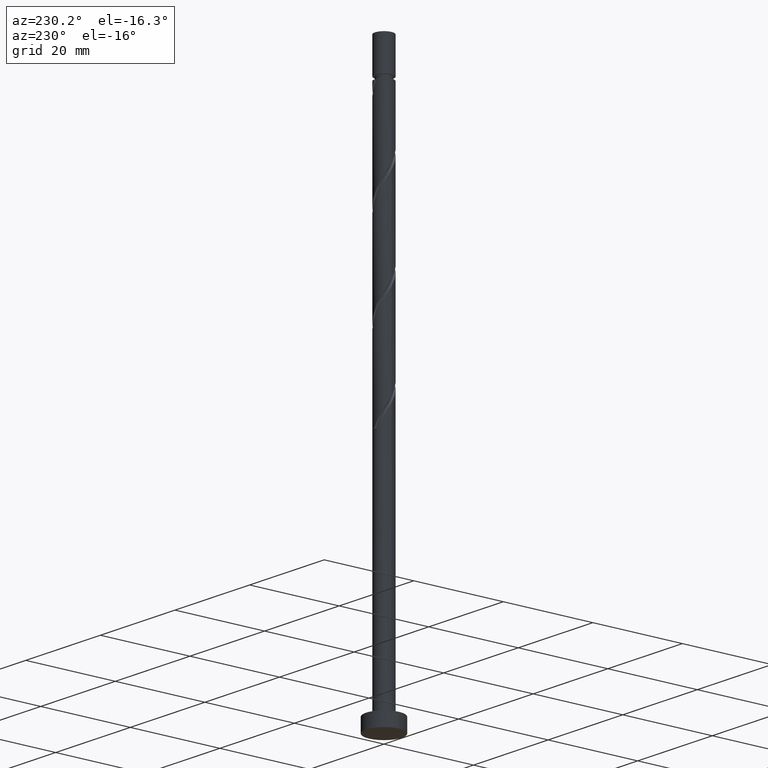
[diagram: clean part render]
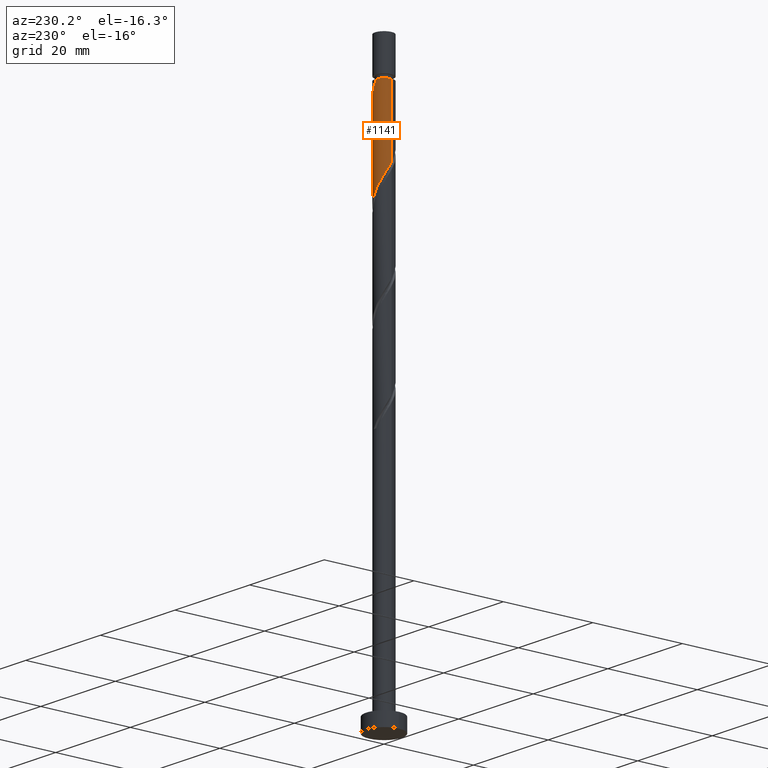
[diagram: same view with one face highlighted and labeled with its STEP entity id]
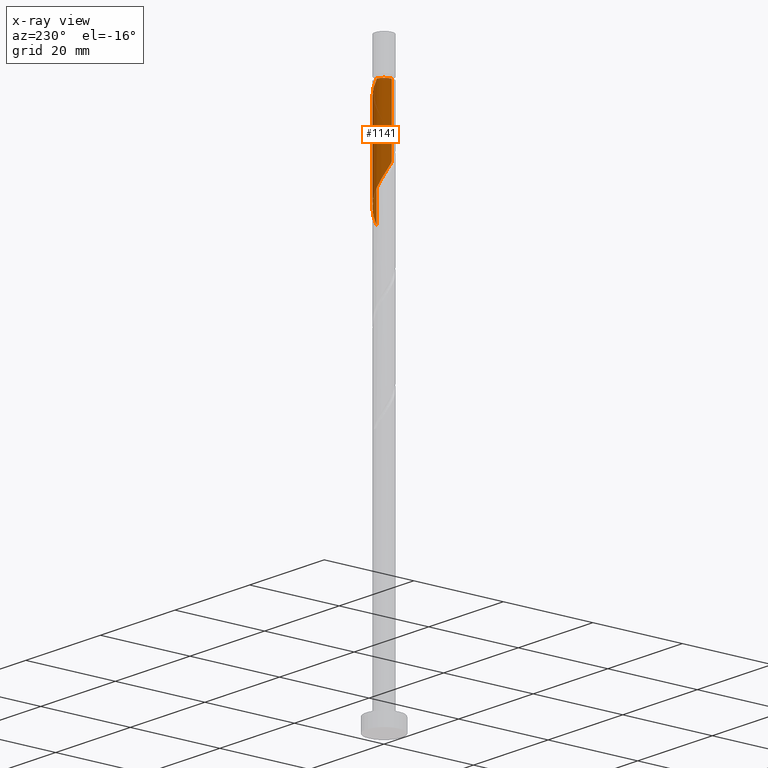
[diagram: x-ray of the same camera — body ghosted, the highlighted face saturated]
A machine part, auxiliary view. The second image highlights one B-rep face of the part: STEP entity #1141.
The next image is the same camera in x-ray: the body ghosted, the highlighted face saturated — about 0% of this face is hidden behind the body in this view.
In plain terms, the highlighted cylindrical surface (edge-blend (fillet) strip) has radius 2 mm, axis along (-0, -0, -1).
Its self-contained STEP definition (entity closure, byte-faithful):
#2 = CARTESIAN_POINT ( 'NONE',  ( -1.118272131136731851, 1.688138017008851577, 98.40886775623292237 ) ) ;
#23 = VECTOR ( 'NONE', #1554, 1000.000000000000000 ) ;
#25 = CARTESIAN_POINT ( 'NONE',  ( 0.08756147180655703133, 2.023036211342430946, 96.32553442289960799 ) ) ;
#33 = AXIS2_PLACEMENT_3D ( 'NONE', #424, #919, #1044 ) ;
#34 = CARTESIAN_POINT ( 'NONE',  ( 1.474043792816779774, 1.351737732275874349, 93.72136775623295080 ) ) ;
#102 = CARTESIAN_POINT ( 'NONE',  ( 1.351737732275877013, 1.474043792816781107, 113.5130344228996222 ) ) ;
#117 = ORIENTED_EDGE ( 'NONE', *, *, #1424, .F. ) ;
#132 = EDGE_CURVE ( 'NONE', #169, #741, #822, .T. ) ;
#157 = CARTESIAN_POINT ( 'NONE',  ( 1.987057982840708892, 0.2271575946980703420, 91.63803442289960799 ) ) ;
#169 = VERTEX_POINT ( 'NONE', #1318 ) ;
#241 = AXIS2_PLACEMENT_3D ( 'NONE', #395, #1121, #896 ) ;
#246 = ORIENTED_EDGE ( 'NONE', *, *, #399, .T. ) ;
#247 = CARTESIAN_POINT ( 'NONE',  ( 0.5418766612026997276, 1.951079754338990169, 115.0755344228996222 ) ) ;
#251 = CARTESIAN_POINT ( 'NONE',  ( -0.8300743961697154560, 1.819608885673918985, 97.88803442289962220 ) ) ;
#267 = CARTESIAN_POINT ( 'NONE',  ( 1.951079754338987282, 0.5418766612026980622, 92.15886775623292237 ) ) ;
#276 = CARTESIAN_POINT ( 'NONE',  ( -1.999999999999999112, 0.2010075630518459722, 101.3435322889620238 ) ) ;
#280 = LINE ( 'NONE', #754, #396 ) ;
#297 = CARTESIAN_POINT ( 'NONE',  ( -2.000000000000000000, -1.409351661621345435E-15, 101.6778368643698798 ) ) ;
#337 = CARTESIAN_POINT ( 'NONE',  ( 0.2271575946980718963, 1.987057982840712000, 115.5963677562329508 ) ) ;
#344 = CARTESIAN_POINT ( 'NONE',  ( 1.896963788657572092, 0.7084284778787396375, 111.9505344228996222 ) ) ;
#386 = CYLINDRICAL_SURFACE ( 'NONE', #241, 2.000000000000000000 ) ;
#387 =( BOUNDED_CURVE ( )  B_SPLINE_CURVE ( 2, ( #1425, #469, #1311, #344, #1446, #1333, #102, #836, #1317, #247, #337, #964, #603 ),
 .UNSPECIFIED., .F., .T. ) 
 B_SPLINE_CURVE_WITH_KNOTS ( ( 3, 2, 2, 2, 2, 2, 3 ),
 ( 0.6795322023138550271, 0.6875000000000000000, 0.6999999999999999556, 0.7124999999999999112, 0.7249999999999998668, 0.7374999999999999334, 0.7499999999999998890 ),
 .UNSPECIFIED. ) 
 CURVE ( )  GEOMETRIC_REPRESENTATION_ITEM ( )  RATIONAL_B_SPLINE_CURVE ( ( 0.9039174447099409537, 0.9019565955404700297, 0.9090909090909186085, 0.8978984914501346726, 0.9090909090909186085, 0.8978984914501346726, 0.9090909090909186085, 0.8978984914501346726, 0.9090909090909186085, 0.8978984914501346726, 0.9090909090909186085, 0.8978984914501347836, 0.9090909090909184975 ) ) 
 REPRESENTATION_ITEM ( '' )  );
#395 = CARTESIAN_POINT ( 'NONE',  ( 0.000000000000000000, 0.000000000000000000, 125.0000000000000000 ) ) ;
#396 = VECTOR ( 'NONE', #1128, 1000.000000000000000 ) ;
#399 = EDGE_CURVE ( 'NONE', #627, #1105, #280, .T. ) ;
#424 = CARTESIAN_POINT ( 'NONE',  ( 0.000000000000000000, 0.000000000000000000, 116.6380344228996222 ) ) ;
#469 = CARTESIAN_POINT ( 'NONE',  ( 2.000000000000003997, 0.2010075630518376733, 111.0992032235038920 ) ) ;
#497 = CARTESIAN_POINT ( 'NONE',  ( 1.688138017008851577, 1.118272131136731407, 93.20053442289963641 ) ) ;
#504 = CARTESIAN_POINT ( 'NONE',  ( -0.5418766612026981733, 1.951079754338987282, 97.36720108956626518 ) ) ;
#507 = CARTESIAN_POINT ( 'NONE',  ( 2.000000000000000000, 2.908661939941925501E-15, 91.26117019770322258 ) ) ;
#511 = CARTESIAN_POINT ( 'NONE',  ( -1.351737732275874793, 1.474043792816779552, 98.92970108956629360 ) ) ;
#520 = CARTESIAN_POINT ( 'NONE',  ( -2.000000000000000000, -1.409351661621345435E-15, 101.6778368643698798 ) ) ;
#570 = CARTESIAN_POINT ( 'NONE',  ( -0.3979949748426602207, 1.960000000000000853, 116.6380344228996648 ) ) ;
#603 = CARTESIAN_POINT ( 'NONE',  ( -0.3979949748426602762, 1.960000000000000853, 116.6380344228996790 ) ) ;
#627 = VERTEX_POINT ( 'NONE', #655 ) ;
#645 = CARTESIAN_POINT ( 'NONE',  ( -1.741083561036292915, 0.9841890232517231940, 99.97136775623295080 ) ) ;
#655 = CARTESIAN_POINT ( 'NONE',  ( 2.000000000000002665, 5.847310085450225337E-16, 110.7648986480960360 ) ) ;
#657 = VERTEX_POINT ( 'NONE', #570 ) ;
#737 = CARTESIAN_POINT ( 'NONE',  ( -0.2271575946980707306, 1.987057982840708892, 96.84636775623295080 ) ) ;
#741 = VERTEX_POINT ( 'NONE', #297 ) ;
#745 = CARTESIAN_POINT ( 'NONE',  ( 0.9841890232517236381, 1.741083561036292915, 94.76303442289962220 ) ) ;
#754 = CARTESIAN_POINT ( 'NONE',  ( 2.000000000000000000, 2.449293598294705921E-16, 125.0000000000000000 ) ) ;
#807 = ORIENTED_EDGE ( 'NONE', *, *, #1268, .T. ) ;
#822 = LINE ( 'NONE', #965, #23 ) ;
#836 = CARTESIAN_POINT ( 'NONE',  ( 1.118272131136734515, 1.688138017008854241, 114.0338677562329650 ) ) ;
#869 = CARTESIAN_POINT ( 'NONE',  ( -1.585203333415016846, 1.259949568624706417, 99.45053442289957957 ) ) ;
#896 = DIRECTION ( 'NONE',  ( -1.000000000000000000, 0.000000000000000000, 0.000000000000000000 ) ) ;
#919 = DIRECTION ( 'NONE',  ( -0.000000000000000000, -0.000000000000000000, -1.000000000000000000 ) ) ;
#964 = CARTESIAN_POINT ( 'NONE',  ( -0.08756147180655346474, 2.023036211342433166, 116.1172010895662936 ) ) ;
#965 = CARTESIAN_POINT ( 'NONE',  ( -2.000000000000000000, 0.000000000000000000, 125.0000000000000000 ) ) ;
#970 = EDGE_LOOP ( 'NONE', ( #117, #246, #1488, #1032, #807 ) ) ;
#977 = CARTESIAN_POINT ( 'NONE',  ( 2.000000000000000000, 2.908661939941925501E-15, 91.26117019770322258 ) ) ;
#1009 = EDGE_CURVE ( 'NONE', #741, #1105, #1147, .T. ) ;
#1032 = ORIENTED_EDGE ( 'NONE', *, *, #132, .F. ) ;
#1033 = CIRCLE ( 'NONE', #33, 1.999999999999998224 ) ;
#1044 = DIRECTION ( 'NONE',  ( -1.000000000000000000, 0.000000000000000000, 0.000000000000000000 ) ) ;
#1105 = VERTEX_POINT ( 'NONE', #507 ) ;
#1121 = DIRECTION ( 'NONE',  ( -0.000000000000000000, -0.000000000000000000, -1.000000000000000000 ) ) ;
#1126 = CARTESIAN_POINT ( 'NONE',  ( 0.3979949748426486189, 1.959999999999999964, 95.80470108956629360 ) ) ;
#1128 = DIRECTION ( 'NONE',  ( -0.000000000000000000, -0.000000000000000000, -1.000000000000000000 ) ) ;
#1141 = ADVANCED_FACE ( 'NONE', ( #1470 ), #386, .T. ) ;
#1147 =( BOUNDED_CURVE ( )  B_SPLINE_CURVE ( 2, ( #520, #276, #1364, #1338, #645, #869, #511, #2, #251, #504, #737, #25, #1126, #1347, #745, #1227, #34, #497, #1236, #267, #157, #1210, #977 ),
 .UNSPECIFIED., .F., .T. ) 
 B_SPLINE_CURVE_WITH_KNOTS ( ( 3, 2, 2, 2, 2, 2, 2, 2, 2, 2, 2, 3 ),
 ( 0.4295322023138553047, 0.4375000000000000000, 0.4500000000000000111, 0.4625000000000000222, 0.4749999999999999778, 0.4874999999999999889, 0.5000000000000000000, 0.5124999999999999556, 0.5250000000000000222, 0.5374999999999999778, 0.5500000000000000444, 0.5545322023138552492 ),
 .UNSPECIFIED. ) 
 CURVE ( )  GEOMETRIC_REPRESENTATION_ITEM ( )  RATIONAL_B_SPLINE_CURVE ( ( 0.9039174447099351806, 0.9019565955404647006, 0.9090909090909128354, 0.8978984914501290104, 0.9090909090909128354, 0.8978984914501290104, 0.9090909090909128354, 0.8978984914501290104, 0.9090909090909128354, 0.8978984914501290104, 0.9090909090909128354, 0.8978984914501290104, 0.9090909090909128354, 0.8978984914501290104, 0.9090909090909128354, 0.8978984914501290104, 0.9090909090909128354, 0.8978984914501290104, 0.9090909090909128354, 0.8978984914501290104, 0.9090909090909128354, 0.9050328050005771452, 0.9039174447099349585 ) ) 
 REPRESENTATION_ITEM ( '' )  );
#1210 = CARTESIAN_POINT ( 'NONE',  ( 2.000000000000000444, 0.1139474748928641784, 91.45068128691049480 ) ) ;
#1227 = CARTESIAN_POINT ( 'NONE',  ( 1.259949568624707084, 1.585203333415016402, 94.24220108956627939 ) ) ;
#1236 = CARTESIAN_POINT ( 'NONE',  ( 1.819608885673919207, 0.8300743961697151230, 92.67970108956630781 ) ) ;
#1268 = EDGE_CURVE ( 'NONE', #169, #657, #1033, .T. ) ;
#1311 = CARTESIAN_POINT ( 'NONE',  ( 1.960000000000003517, 0.3979949748426481748, 111.4297010895663078 ) ) ;
#1317 = CARTESIAN_POINT ( 'NONE',  ( 0.8300743961697175655, 1.819608885673922094, 114.5547010895662936 ) ) ;
#1318 = CARTESIAN_POINT ( 'NONE',  ( -1.999999999999998224, 0.000000000000000000, 116.6380344228996222 ) ) ;
#1333 = CARTESIAN_POINT ( 'NONE',  ( 1.585203333415019955, 1.259949568624708416, 112.9922010895662936 ) ) ;
#1338 = CARTESIAN_POINT ( 'NONE',  ( -1.896963788657569427, 0.7084284778787393044, 100.4922010895663078 ) ) ;
#1347 = CARTESIAN_POINT ( 'NONE',  ( 0.7084284778787398595, 1.896963788657568539, 95.28386775623297922 ) ) ;
#1364 = CARTESIAN_POINT ( 'NONE',  ( -1.959999999999999964, 0.3979949748426482303, 101.0130344228996222 ) ) ;
#1424 = EDGE_CURVE ( 'NONE', #627, #657, #387, .T. ) ;
#1425 = CARTESIAN_POINT ( 'NONE',  ( 2.000000000000002665, 5.847310085450225337E-16, 110.7648986480960360 ) ) ;
#1446 = CARTESIAN_POINT ( 'NONE',  ( 1.741083561036296024, 0.9841890232517238601, 112.4713677562329650 ) ) ;
#1470 = FACE_OUTER_BOUND ( 'NONE', #970, .T. ) ;
#1488 = ORIENTED_EDGE ( 'NONE', *, *, #1009, .F. ) ;
#1554 = DIRECTION ( 'NONE',  ( -0.000000000000000000, -0.000000000000000000, -1.000000000000000000 ) ) ;